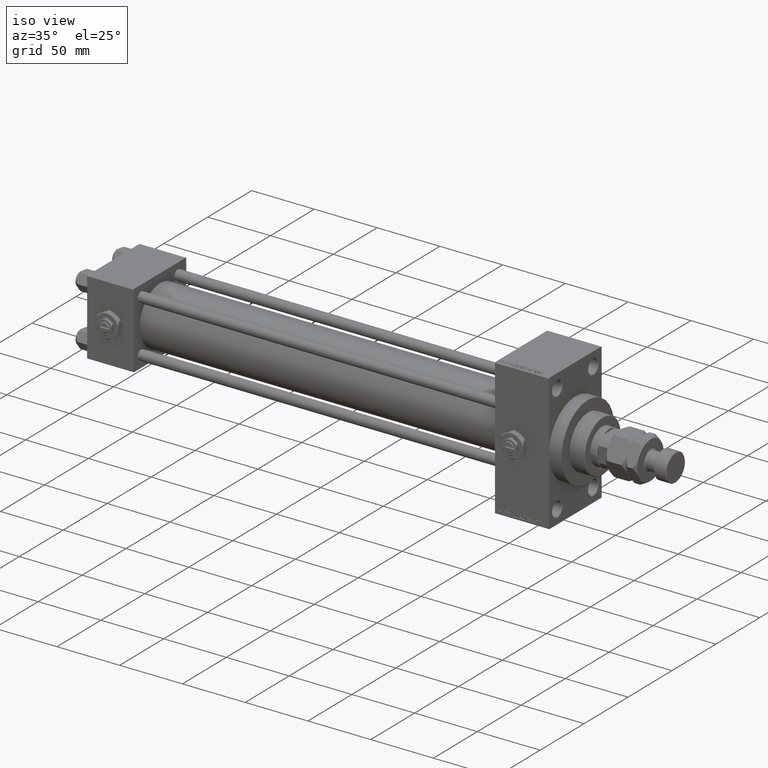
[diagram: clean part render]
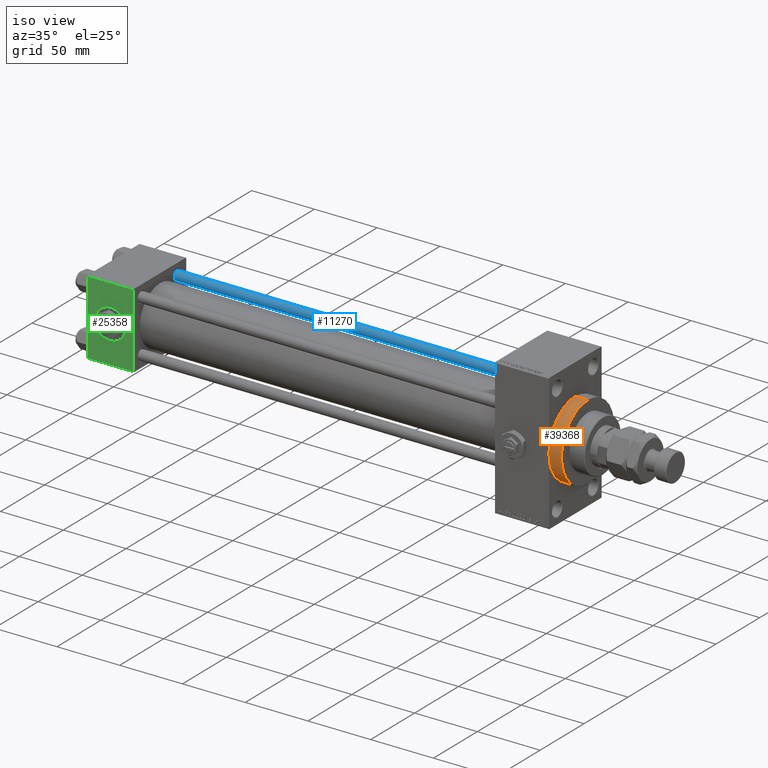
[diagram: same view with three faces highlighted in distinct colors, each labeled with its STEP entity id]
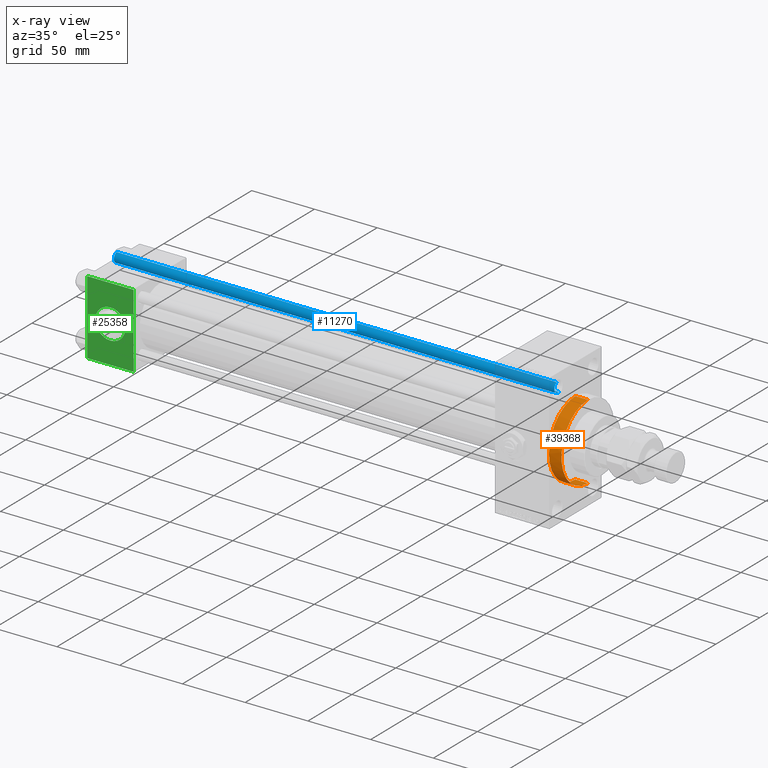
[diagram: x-ray of the same camera — body ghosted, the three highlighted faces saturated]
A machine part, iso view with three faces highlighted in distinct colors.
The next image is the same camera in x-ray (body ghosted, the three faces saturated) — at least one of them is partly hidden behind the body in this view.
Their STEP definitions:

[orange] entity #39368 — the highlighted cylindrical surface (partial cylindrical patch) has radius 30 mm, axis along (-1, -0, -0).
#13 = DIRECTION ( 'NONE',  ( -1.000000000000000000, -0.000000000000000000, -0.000000000000000000 ) ) ;
#492 = EDGE_LOOP ( 'NONE', ( #26299, #42539, #18973, #48379, #10719 ) ) ;
#2385 = CARTESIAN_POINT ( 'NONE',  ( 377.9999999999999432, 3.673940397442059178E-15, -30.00000000000000000 ) ) ;
#2441 = CARTESIAN_POINT ( 'NONE',  ( 377.9999999999999432, 0.000000000000000000, 30.00000000000000000 ) ) ;
#2887 = VECTOR ( 'NONE', #13, 1000.000000000000000 ) ;
#4267 = VERTEX_POINT ( 'NONE', #23065 ) ;
#4330 = DIRECTION ( 'NONE',  ( -1.000000000000000000, -0.000000000000000000, -0.000000000000000000 ) ) ;
#4442 = CIRCLE ( 'NONE', #20105, 30.00000000000000000 ) ;
#5798 = LINE ( 'NONE', #2441, #9764 ) ;
#6021 = AXIS2_PLACEMENT_3D ( 'NONE', #47493, #8572, #13218 ) ;
#7249 = DIRECTION ( 'NONE',  ( 1.000000000000000000, 0.000000000000000000, 0.000000000000000000 ) ) ;
#8211 = FACE_OUTER_BOUND ( 'NONE', #492, .T. ) ;
#8572 = DIRECTION ( 'NONE',  ( 1.000000000000000000, 0.000000000000000000, 0.000000000000000000 ) ) ;
#9764 = VECTOR ( 'NONE', #29529, 1000.000000000000000 ) ;
#10719 = ORIENTED_EDGE ( 'NONE', *, *, #33317, .T. ) ;
#12039 = AXIS2_PLACEMENT_3D ( 'NONE', #31943, #4330, #35813 ) ;
#13218 = DIRECTION ( 'NONE',  ( 0.000000000000000000, 0.000000000000000000, -1.000000000000000000 ) ) ;
#15281 = VERTEX_POINT ( 'NONE', #32445 ) ;
#17393 = VERTEX_POINT ( 'NONE', #23631 ) ;
#18973 = ORIENTED_EDGE ( 'NONE', *, *, #19389, .T. ) ;
#19287 = VERTEX_POINT ( 'NONE', #21283 ) ;
#19389 = EDGE_CURVE ( 'NONE', #4267, #17393, #5798, .T. ) ;
#19615 = CARTESIAN_POINT ( 'NONE',  ( 377.9999999999999432, 3.673940397442059178E-15, -30.00000000000000000 ) ) ;
#20105 = AXIS2_PLACEMENT_3D ( 'NONE', #43335, #7249, #35626 ) ;
#21283 = CARTESIAN_POINT ( 'NONE',  ( 367.9999999999999432, 3.673940397442059178E-15, -30.00000000000000000 ) ) ;
#23065 = CARTESIAN_POINT ( 'NONE',  ( 377.9999999999999432, 0.000000000000000000, 30.00000000000000000 ) ) ;
#23471 = LINE ( 'NONE', #19615, #2887 ) ;
#23631 = CARTESIAN_POINT ( 'NONE',  ( 367.9999999999999432, 0.000000000000000000, 30.00000000000000000 ) ) ;
#23929 = CYLINDRICAL_SURFACE ( 'NONE', #12039, 30.00000000000000000 ) ;
#24281 = EDGE_CURVE ( 'NONE', #4267, #31202, #36314, .T. ) ;
#26299 = ORIENTED_EDGE ( 'NONE', *, *, #37831, .F. ) ;
#26317 = DIRECTION ( 'NONE',  ( 1.000000000000000000, 0.000000000000000000, 0.000000000000000000 ) ) ;
#27079 = DIRECTION ( 'NONE',  ( 0.000000000000000000, 0.000000000000000000, -1.000000000000000000 ) ) ;
#29529 = DIRECTION ( 'NONE',  ( -1.000000000000000000, -0.000000000000000000, -0.000000000000000000 ) ) ;
#31202 = VERTEX_POINT ( 'NONE', #2385 ) ;
#31943 = CARTESIAN_POINT ( 'NONE',  ( 377.9999999999999432, 0.000000000000000000, 0.000000000000000000 ) ) ;
#32445 = CARTESIAN_POINT ( 'NONE',  ( 367.9999999999999432, -30.00000000000000000, 0.000000000000000000 ) ) ;
#33317 = EDGE_CURVE ( 'NONE', #15281, #19287, #37344, .T. ) ;
#34399 = EDGE_CURVE ( 'NONE', #17393, #15281, #4442, .T. ) ;
#34830 = CARTESIAN_POINT ( 'NONE',  ( 377.9999999999999432, 0.000000000000000000, 0.000000000000000000 ) ) ;
#35626 = DIRECTION ( 'NONE',  ( 0.000000000000000000, 0.000000000000000000, -1.000000000000000000 ) ) ;
#35813 = DIRECTION ( 'NONE',  ( 0.000000000000000000, 0.000000000000000000, 1.000000000000000000 ) ) ;
#36314 = CIRCLE ( 'NONE', #45334, 30.00000000000000000 ) ;
#37344 = CIRCLE ( 'NONE', #6021, 30.00000000000000000 ) ;
#37831 = EDGE_CURVE ( 'NONE', #31202, #19287, #23471, .T. ) ;
#39368 = ADVANCED_FACE ( 'NONE', ( #8211 ), #23929, .T. ) ;
#42539 = ORIENTED_EDGE ( 'NONE', *, *, #24281, .F. ) ;
#43335 = CARTESIAN_POINT ( 'NONE',  ( 367.9999999999999432, 0.000000000000000000, 0.000000000000000000 ) ) ;
#45334 = AXIS2_PLACEMENT_3D ( 'NONE', #34830, #26317, #27079 ) ;
#47493 = CARTESIAN_POINT ( 'NONE',  ( 367.9999999999999432, 0.000000000000000000, 0.000000000000000000 ) ) ;
#48379 = ORIENTED_EDGE ( 'NONE', *, *, #34399, .T. ) ;

[blue] entity #11270 — the highlighted cylindrical surface (edge-blend (fillet) strip) has radius 4 mm, axis along (-1, -0, 0).
#178 = EDGE_CURVE ( 'NONE', #17432, #17420, #19134, .T. ) ;
#2363 = ORIENTED_EDGE ( 'NONE', *, *, #178, .T. ) ;
#6264 = AXIS2_PLACEMENT_3D ( 'NONE', #28343, #23010, #16757 ) ;
#7540 = CYLINDRICAL_SURFACE ( 'NONE', #6264, 4.000000000000000000 ) ;
#11178 = CIRCLE ( 'NONE', #17778, 4.000000000000000000 ) ;
#11270 = ADVANCED_FACE ( 'NONE', ( #40472 ), #7540, .T. ) ;
#12867 = CARTESIAN_POINT ( 'NONE',  ( 4.000000000000000000, 4.898587196589412829E-16, 352.0000000000000000 ) ) ;
#13789 = DIRECTION ( 'NONE',  ( 1.000000000000000000, 0.000000000000000000, 0.000000000000000000 ) ) ;
#13903 = ORIENTED_EDGE ( 'NONE', *, *, #38697, .T. ) ;
#14306 = CARTESIAN_POINT ( 'NONE',  ( 0.000000000000000000, 0.000000000000000000, 351.5000000000000000 ) ) ;
#15049 = AXIS2_PLACEMENT_3D ( 'NONE', #14306, #29780, #25902 ) ;
#16757 = DIRECTION ( 'NONE',  ( -1.000000000000000000, 0.000000000000000000, 0.000000000000000000 ) ) ;
#16993 = LINE ( 'NONE', #12867, #37703 ) ;
#17176 = CARTESIAN_POINT ( 'NONE',  ( 4.000000000000000000, 4.898587196589412829E-16, 351.5000000000000000 ) ) ;
#17420 = VERTEX_POINT ( 'NONE', #48098 ) ;
#17432 = VERTEX_POINT ( 'NONE', #17176 ) ;
#17778 = AXIS2_PLACEMENT_3D ( 'NONE', #30285, #44966, #13789 ) ;
#19134 = CIRCLE ( 'NONE', #15049, 4.000000000000000000 ) ;
#20597 = DIRECTION ( 'NONE',  ( -0.000000000000000000, -0.000000000000000000, -1.000000000000000000 ) ) ;
#21219 = ORIENTED_EDGE ( 'NONE', *, *, #44241, .T. ) ;
#23010 = DIRECTION ( 'NONE',  ( -0.000000000000000000, -0.000000000000000000, -1.000000000000000000 ) ) ;
#24420 = VERTEX_POINT ( 'NONE', #37628 ) ;
#25902 = DIRECTION ( 'NONE',  ( 1.000000000000000000, 0.000000000000000000, 0.000000000000000000 ) ) ;
#26926 = CARTESIAN_POINT ( 'NONE',  ( -4.000000000000000000, 0.000000000000000000, 352.0000000000000000 ) ) ;
#28145 = VERTEX_POINT ( 'NONE', #48898 ) ;
#28343 = CARTESIAN_POINT ( 'NONE',  ( 0.000000000000000000, 0.000000000000000000, 352.0000000000000000 ) ) ;
#29780 = DIRECTION ( 'NONE',  ( 0.000000000000000000, 0.000000000000000000, -1.000000000000000000 ) ) ;
#30285 = CARTESIAN_POINT ( 'NONE',  ( 0.000000000000000000, 0.000000000000000000, 0.5000000000000004441 ) ) ;
#31727 = ORIENTED_EDGE ( 'NONE', *, *, #42715, .F. ) ;
#31973 = VECTOR ( 'NONE', #42654, 1000.000000000000000 ) ;
#34426 = LINE ( 'NONE', #26926, #31973 ) ;
#36055 = EDGE_LOOP ( 'NONE', ( #31727, #2363, #21219, #13903 ) ) ;
#37628 = CARTESIAN_POINT ( 'NONE',  ( -4.000000000000000000, 0.000000000000000000, 0.5000000000000004441 ) ) ;
#37703 = VECTOR ( 'NONE', #20597, 1000.000000000000000 ) ;
#38697 = EDGE_CURVE ( 'NONE', #24420, #28145, #11178, .T. ) ;
#40472 = FACE_OUTER_BOUND ( 'NONE', #36055, .T. ) ;
#42654 = DIRECTION ( 'NONE',  ( -0.000000000000000000, -0.000000000000000000, -1.000000000000000000 ) ) ;
#42715 = EDGE_CURVE ( 'NONE', #17432, #28145, #16993, .T. ) ;
#44241 = EDGE_CURVE ( 'NONE', #17420, #24420, #34426, .T. ) ;
#44966 = DIRECTION ( 'NONE',  ( -0.000000000000000000, -0.000000000000000000, 1.000000000000000000 ) ) ;
#48098 = CARTESIAN_POINT ( 'NONE',  ( -4.000000000000000000, 0.000000000000000000, 351.5000000000000000 ) ) ;
#48898 = CARTESIAN_POINT ( 'NONE',  ( 4.000000000000000000, 4.898587196589412829E-16, 0.5000000000000004441 ) ) ;

[green] entity #25358 — the highlighted planar face has unit normal (0, 1, 0).
#2028 = DIRECTION ( 'NONE',  ( -0.000000000000000000, 1.000000000000000000, 0.000000000000000000 ) ) ;
#3110 = ORIENTED_EDGE ( 'NONE', *, *, #18466, .T. ) ;
#3345 = VERTEX_POINT ( 'NONE', #32100 ) ;
#4221 = EDGE_CURVE ( 'NONE', #20075, #45515, #30838, .T. ) ;
#5276 = AXIS2_PLACEMENT_3D ( 'NONE', #45505, #9694, #21306 ) ;
#5640 = DIRECTION ( 'NONE',  ( 0.000000000000000000, -0.000000000000000000, 1.000000000000000000 ) ) ;
#6394 = VECTOR ( 'NONE', #26370, 1000.000000000000000 ) ;
#9629 = VECTOR ( 'NONE', #26092, 1000.000000000000000 ) ;
#9657 = CARTESIAN_POINT ( 'NONE',  ( 37.00000000000000000, -30.00000000000000000, -29.50000000000001776 ) ) ;
#9694 = DIRECTION ( 'NONE',  ( 0.000000000000000000, -1.000000000000000000, -8.673617379884036705E-17 ) ) ;
#10026 = FACE_OUTER_BOUND ( 'NONE', #46243, .T. ) ;
#11403 = LINE ( 'NONE', #18887, #6394 ) ;
#13393 = FACE_BOUND ( 'NONE', #50700, .T. ) ;
#13580 = ORIENTED_EDGE ( 'NONE', *, *, #41468, .T. ) ;
#14412 = PLANE ( 'NONE',  #37199 ) ;
#14468 = ORIENTED_EDGE ( 'NONE', *, *, #4221, .F. ) ;
#15837 = CARTESIAN_POINT ( 'NONE',  ( 0.000000000000000000, -30.00000000000000000, 29.99999999999999289 ) ) ;
#18287 = VERTEX_POINT ( 'NONE', #9657 ) ;
#18466 = EDGE_CURVE ( 'NONE', #3345, #23783, #23549, .T. ) ;
#18887 = CARTESIAN_POINT ( 'NONE',  ( 37.00000000000000000, -30.00000000000000000, 29.49999999999999289 ) ) ;
#18894 = CARTESIAN_POINT ( 'NONE',  ( 18.50000000000000000, -30.00000000000000000, 0.000000000000000000 ) ) ;
#19075 = AXIS2_PLACEMENT_3D ( 'NONE', #18894, #23262, #46455 ) ;
#19810 = ORIENTED_EDGE ( 'NONE', *, *, #26619, .F. ) ;
#20075 = VERTEX_POINT ( 'NONE', #45863 ) ;
#20266 = DIRECTION ( 'NONE',  ( 0.000000000000000000, 0.000000000000000000, -1.000000000000000000 ) ) ;
#21306 = DIRECTION ( 'NONE',  ( 0.000000000000000000, 0.000000000000000000, -1.000000000000000000 ) ) ;
#22971 = ORIENTED_EDGE ( 'NONE', *, *, #50659, .F. ) ;
#23110 = CARTESIAN_POINT ( 'NONE',  ( 37.00000000000000000, -30.00000000000000000, 29.99999999999999289 ) ) ;
#23262 = DIRECTION ( 'NONE',  ( 0.000000000000000000, -1.000000000000000000, -8.673617379884036705E-17 ) ) ;
#23549 = LINE ( 'NONE', #15837, #24551 ) ;
#23783 = VERTEX_POINT ( 'NONE', #33152 ) ;
#24551 = VECTOR ( 'NONE', #32585, 1000.000000000000000 ) ;
#25358 = ADVANCED_FACE ( 'NONE', ( #13393, #10026 ), #14412, .F. ) ;
#26092 = DIRECTION ( 'NONE',  ( 1.000000000000000000, 0.000000000000000000, 0.000000000000000000 ) ) ;
#26370 = DIRECTION ( 'NONE',  ( -1.000000000000000000, 0.000000000000000000, 0.000000000000000000 ) ) ;
#26619 = EDGE_CURVE ( 'NONE', #45515, #20075, #41334, .T. ) ;
#28005 = LINE ( 'NONE', #23110, #35418 ) ;
#29113 = CARTESIAN_POINT ( 'NONE',  ( 37.00000000000000000, -30.00000000000000000, 29.99999999999999289 ) ) ;
#30838 = CIRCLE ( 'NONE', #5276, 12.00000000000000178 ) ;
#32100 = CARTESIAN_POINT ( 'NONE',  ( 0.000000000000000000, -30.00000000000000000, 29.49999999999999289 ) ) ;
#32342 = ORIENTED_EDGE ( 'NONE', *, *, #43550, .T. ) ;
#32585 = DIRECTION ( 'NONE',  ( 0.000000000000000000, 0.000000000000000000, -1.000000000000000000 ) ) ;
#33152 = CARTESIAN_POINT ( 'NONE',  ( 0.000000000000000000, -30.00000000000000000, -29.50000000000001776 ) ) ;
#35418 = VECTOR ( 'NONE', #20266, 1000.000000000000000 ) ;
#37199 = AXIS2_PLACEMENT_3D ( 'NONE', #29113, #2028, #5640 ) ;
#41334 = CIRCLE ( 'NONE', #19075, 12.00000000000000178 ) ;
#41468 = EDGE_CURVE ( 'NONE', #23783, #18287, #45917, .T. ) ;
#43550 = EDGE_CURVE ( 'NONE', #48872, #3345, #11403, .T. ) ;
#45505 = CARTESIAN_POINT ( 'NONE',  ( 18.50000000000000000, -30.00000000000000000, 0.000000000000000000 ) ) ;
#45515 = VERTEX_POINT ( 'NONE', #45631 ) ;
#45631 = CARTESIAN_POINT ( 'NONE',  ( 18.50000000000000000, -30.00000000000000000, 12.00000000000000178 ) ) ;
#45863 = CARTESIAN_POINT ( 'NONE',  ( 18.50000000000000000, -30.00000000000000000, -12.00000000000000178 ) ) ;
#45917 = LINE ( 'NONE', #49290, #9629 ) ;
#46243 = EDGE_LOOP ( 'NONE', ( #3110, #13580, #22971, #32342 ) ) ;
#46455 = DIRECTION ( 'NONE',  ( 0.000000000000000000, 0.000000000000000000, -1.000000000000000000 ) ) ;
#48872 = VERTEX_POINT ( 'NONE', #49547 ) ;
#49290 = CARTESIAN_POINT ( 'NONE',  ( 37.00000000000000000, -30.00000000000000000, -29.50000000000001776 ) ) ;
#49547 = CARTESIAN_POINT ( 'NONE',  ( 37.00000000000000000, -30.00000000000000000, 29.49999999999999289 ) ) ;
#50659 = EDGE_CURVE ( 'NONE', #48872, #18287, #28005, .T. ) ;
#50700 = EDGE_LOOP ( 'NONE', ( #14468, #19810 ) ) ;